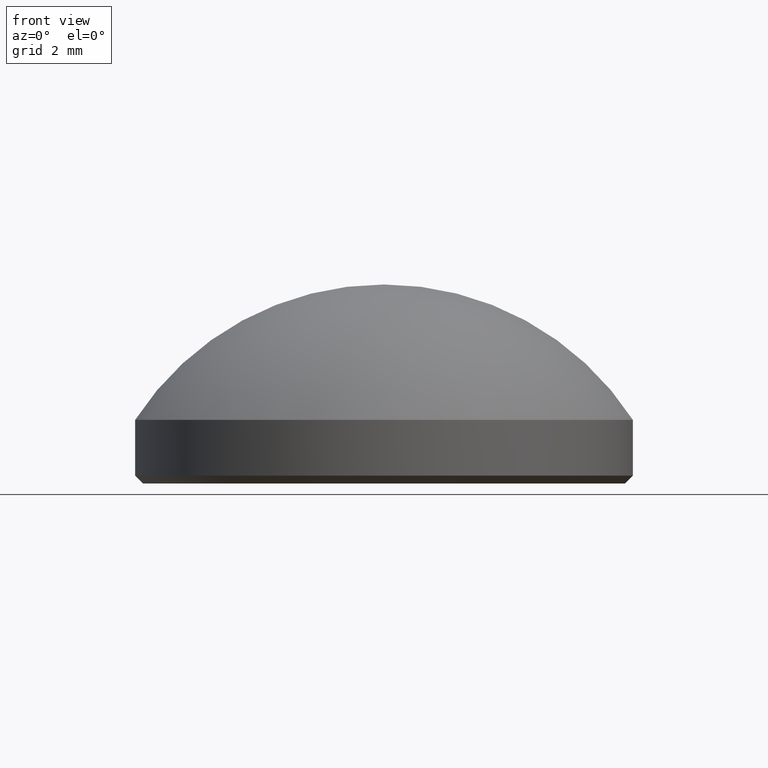
[diagram: clean part render]
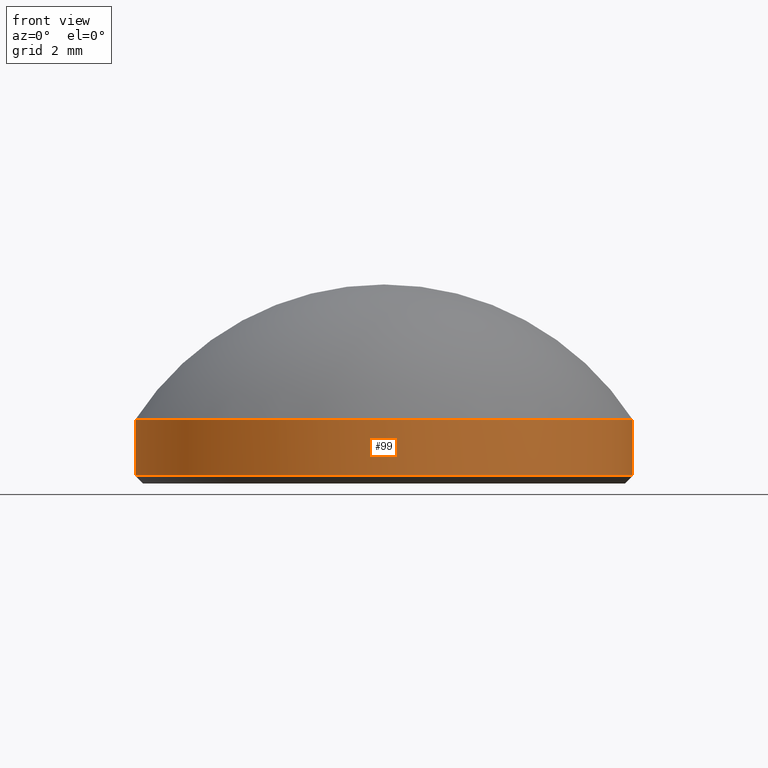
[diagram: same view with one face highlighted and labeled with its STEP entity id]
A machine part, front view. The second image highlights one B-rep face of the part: STEP entity #99.
In plain terms, the highlighted cylindrical surface (partial cylindrical patch) has radius 6.25 mm, axis along (-0, -0, -1).
Its self-contained STEP definition (entity closure, byte-faithful):
#3 = DIRECTION ( 'NONE',  ( -0.000000000000000000, -0.000000000000000000, 1.000000000000000000 ) ) ;
#4 = DIRECTION ( 'NONE',  ( 0.000000000000000000, 0.000000000000000000, 1.000000000000000000 ) ) ;
#15 = DIRECTION ( 'NONE',  ( -0.000000000000000000, -0.000000000000000000, -1.000000000000000000 ) ) ;
#18 = VECTOR ( 'NONE', #15, 1000.000000000000000 ) ;
#34 = CYLINDRICAL_SURFACE ( 'NONE', #163, 6.250000000000000000 ) ;
#35 = EDGE_CURVE ( 'NONE', #209, #117, #92, .T. ) ;
#38 = ORIENTED_EDGE ( 'NONE', *, *, #35, .T. ) ;
#45 = CIRCLE ( 'NONE', #212, 6.250000000000000000 ) ;
#51 = AXIS2_PLACEMENT_3D ( 'NONE', #124, #4, #87 ) ;
#52 = DIRECTION ( 'NONE',  ( -0.000000000000000000, -0.000000000000000000, -1.000000000000000000 ) ) ;
#57 = EDGE_LOOP ( 'NONE', ( #166, #206, #38, #211 ) ) ;
#61 = VERTEX_POINT ( 'NONE', #94 ) ;
#62 = VECTOR ( 'NONE', #121, 1000.000000000000000 ) ;
#64 = DIRECTION ( 'NONE',  ( -1.000000000000000000, 0.000000000000000000, 0.000000000000000000 ) ) ;
#76 = CARTESIAN_POINT ( 'NONE',  ( -6.250000000000000000, 0.000000000000000000, 1.600000000000000089 ) ) ;
#83 = CARTESIAN_POINT ( 'NONE',  ( -6.250000000000000000, 0.000000000000000000, 1.600000000000000089 ) ) ;
#87 = DIRECTION ( 'NONE',  ( 1.000000000000000000, 0.000000000000000000, 0.000000000000000000 ) ) ;
#92 = LINE ( 'NONE', #76, #18 ) ;
#94 = CARTESIAN_POINT ( 'NONE',  ( 6.250000000000000000, 7.654042494670957606E-16, 1.600000000000000089 ) ) ;
#96 = VERTEX_POINT ( 'NONE', #157 ) ;
#99 = ADVANCED_FACE ( 'NONE', ( #101 ), #34, .T. ) ;
#101 = FACE_OUTER_BOUND ( 'NONE', #57, .T. ) ;
#103 = CARTESIAN_POINT ( 'NONE',  ( 6.250000000000000000, 7.654042494670957606E-16, 1.600000000000000089 ) ) ;
#104 = EDGE_CURVE ( 'NONE', #117, #96, #45, .T. ) ;
#105 = DIRECTION ( 'NONE',  ( 1.000000000000000000, 0.000000000000000000, 0.000000000000000000 ) ) ;
#108 = EDGE_CURVE ( 'NONE', #61, #96, #122, .T. ) ;
#117 = VERTEX_POINT ( 'NONE', #170 ) ;
#121 = DIRECTION ( 'NONE',  ( -0.000000000000000000, -0.000000000000000000, -1.000000000000000000 ) ) ;
#122 = LINE ( 'NONE', #103, #62 ) ;
#124 = CARTESIAN_POINT ( 'NONE',  ( 0.000000000000000000, 0.000000000000000000, 1.600000000000000089 ) ) ;
#125 = EDGE_CURVE ( 'NONE', #209, #61, #197, .T. ) ;
#156 = CARTESIAN_POINT ( 'NONE',  ( 0.000000000000000000, 0.000000000000000000, 1.600000000000000089 ) ) ;
#157 = CARTESIAN_POINT ( 'NONE',  ( 6.250000000000000000, 7.654042494670957606E-16, 0.1999999999999987899 ) ) ;
#163 = AXIS2_PLACEMENT_3D ( 'NONE', #156, #52, #64 ) ;
#166 = ORIENTED_EDGE ( 'NONE', *, *, #108, .F. ) ;
#170 = CARTESIAN_POINT ( 'NONE',  ( -6.250000000000000000, 0.000000000000000000, 0.1999999999999987899 ) ) ;
#197 = CIRCLE ( 'NONE', #51, 6.250000000000000000 ) ;
#201 = CARTESIAN_POINT ( 'NONE',  ( 0.000000000000000000, 0.000000000000000000, 0.1999999999999987899 ) ) ;
#206 = ORIENTED_EDGE ( 'NONE', *, *, #125, .F. ) ;
#209 = VERTEX_POINT ( 'NONE', #83 ) ;
#211 = ORIENTED_EDGE ( 'NONE', *, *, #104, .T. ) ;
#212 = AXIS2_PLACEMENT_3D ( 'NONE', #201, #3, #105 ) ;